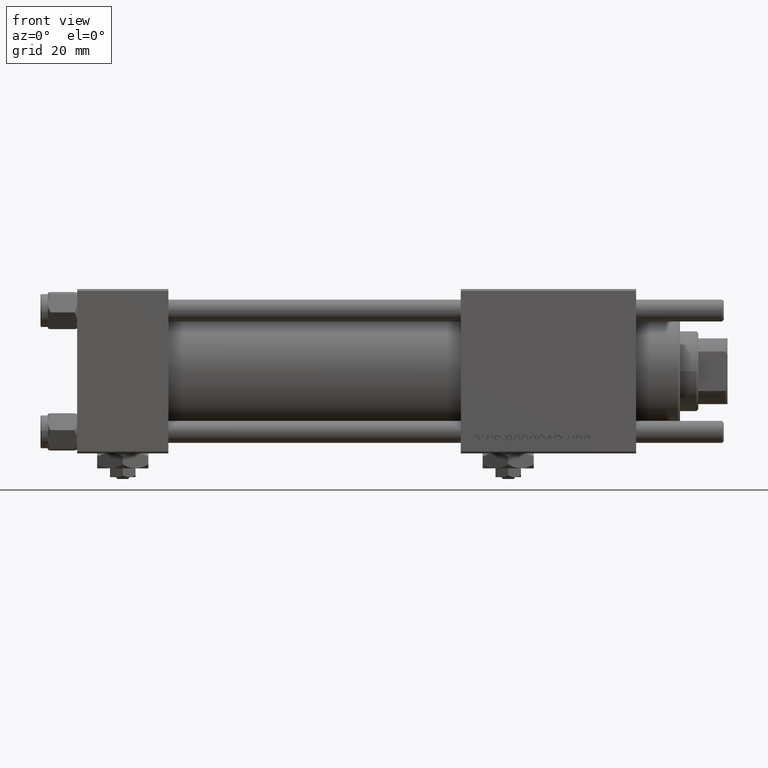
[diagram: clean part render]
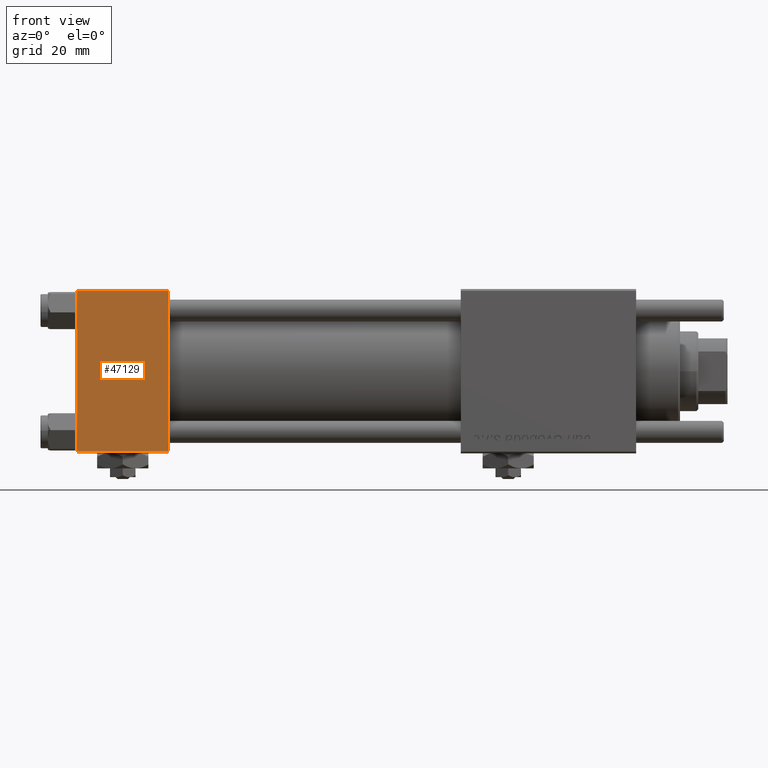
[diagram: same view with one face highlighted and labeled with its STEP entity id]
A machine part, front view. The second image highlights one B-rep face of the part: STEP entity #47129.
In plain terms, the highlighted planar face has unit normal (0, 1, 0).
Its self-contained STEP definition (entity closure, byte-faithful):
#3019 = CARTESIAN_POINT ( 'NONE',  ( 25.00000000000000000, -22.50000000000000000, 22.00000000000000000 ) ) ;
#3313 = DIRECTION ( 'NONE',  ( -1.000000000000000000, 0.000000000000000000, 0.000000000000000000 ) ) ;
#4386 = VERTEX_POINT ( 'NONE', #41647 ) ;
#6949 = EDGE_CURVE ( 'NONE', #37392, #41854, #27595, .T. ) ;
#9434 = ORIENTED_EDGE ( 'NONE', *, *, #47513, .T. ) ;
#9992 = EDGE_LOOP ( 'NONE', ( #58021, #55308, #50063, #9434 ) ) ;
#11850 = DIRECTION ( 'NONE',  ( 0.000000000000000000, -0.000000000000000000, 1.000000000000000000 ) ) ;
#12377 = CARTESIAN_POINT ( 'NONE',  ( 25.00000000000000000, -22.50000000000000000, 22.50000000000000000 ) ) ;
#12678 = LINE ( 'NONE', #12377, #18427 ) ;
#15377 = CARTESIAN_POINT ( 'NONE',  ( 0.000000000000000000, -22.50000000000000000, -21.99999999999997158 ) ) ;
#16333 = DIRECTION ( 'NONE',  ( -0.000000000000000000, 1.000000000000000000, 0.000000000000000000 ) ) ;
#18427 = VECTOR ( 'NONE', #54031, 1000.000000000000000 ) ;
#18590 = VECTOR ( 'NONE', #3313, 1000.000000000000000 ) ;
#20791 = CARTESIAN_POINT ( 'NONE',  ( 25.00000000000000000, -22.50000000000000000, 22.50000000000000000 ) ) ;
#21650 = DIRECTION ( 'NONE',  ( 0.000000000000000000, 0.000000000000000000, -1.000000000000000000 ) ) ;
#27595 = LINE ( 'NONE', #39821, #47259 ) ;
#30586 = LINE ( 'NONE', #48744, #35593 ) ;
#31469 = DIRECTION ( 'NONE',  ( 1.000000000000000000, 0.000000000000000000, 0.000000000000000000 ) ) ;
#32000 = PLANE ( 'NONE',  #40387 ) ;
#35593 = VECTOR ( 'NONE', #21650, 1000.000000000000000 ) ;
#36478 = FACE_OUTER_BOUND ( 'NONE', #9992, .T. ) ;
#37392 = VERTEX_POINT ( 'NONE', #15377 ) ;
#38472 = EDGE_CURVE ( 'NONE', #41651, #41854, #12678, .T. ) ;
#39821 = CARTESIAN_POINT ( 'NONE',  ( 25.00000000000000000, -22.50000000000000000, -21.99999999999998579 ) ) ;
#40194 = CARTESIAN_POINT ( 'NONE',  ( 25.00000000000000000, -22.50000000000000000, -21.99999999999997158 ) ) ;
#40387 = AXIS2_PLACEMENT_3D ( 'NONE', #20791, #16333, #11850 ) ;
#41647 = CARTESIAN_POINT ( 'NONE',  ( 0.000000000000000000, -22.50000000000000000, 22.00000000000000000 ) ) ;
#41651 = VERTEX_POINT ( 'NONE', #50943 ) ;
#41854 = VERTEX_POINT ( 'NONE', #40194 ) ;
#44684 = LINE ( 'NONE', #3019, #18590 ) ;
#45649 = EDGE_CURVE ( 'NONE', #4386, #37392, #30586, .T. ) ;
#47129 = ADVANCED_FACE ( 'NONE', ( #36478 ), #32000, .F. ) ;
#47259 = VECTOR ( 'NONE', #31469, 1000.000000000000000 ) ;
#47513 = EDGE_CURVE ( 'NONE', #41651, #4386, #44684, .T. ) ;
#48744 = CARTESIAN_POINT ( 'NONE',  ( 0.000000000000000000, -22.50000000000000000, 22.50000000000000000 ) ) ;
#50063 = ORIENTED_EDGE ( 'NONE', *, *, #38472, .F. ) ;
#50943 = CARTESIAN_POINT ( 'NONE',  ( 25.00000000000000000, -22.50000000000000000, 22.00000000000000000 ) ) ;
#54031 = DIRECTION ( 'NONE',  ( 0.000000000000000000, 0.000000000000000000, -1.000000000000000000 ) ) ;
#55308 = ORIENTED_EDGE ( 'NONE', *, *, #6949, .T. ) ;
#58021 = ORIENTED_EDGE ( 'NONE', *, *, #45649, .T. ) ;